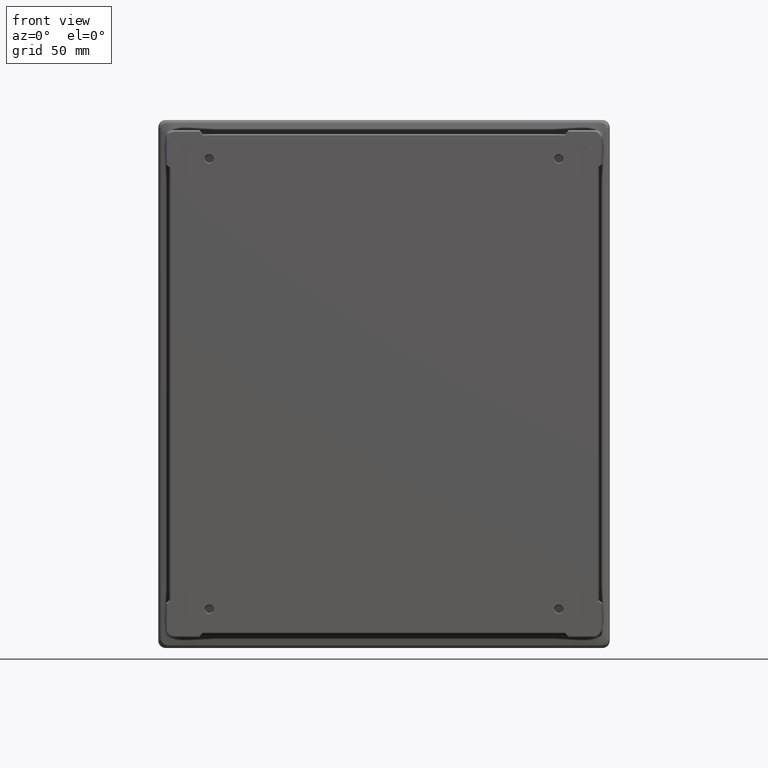
[diagram: clean part render]
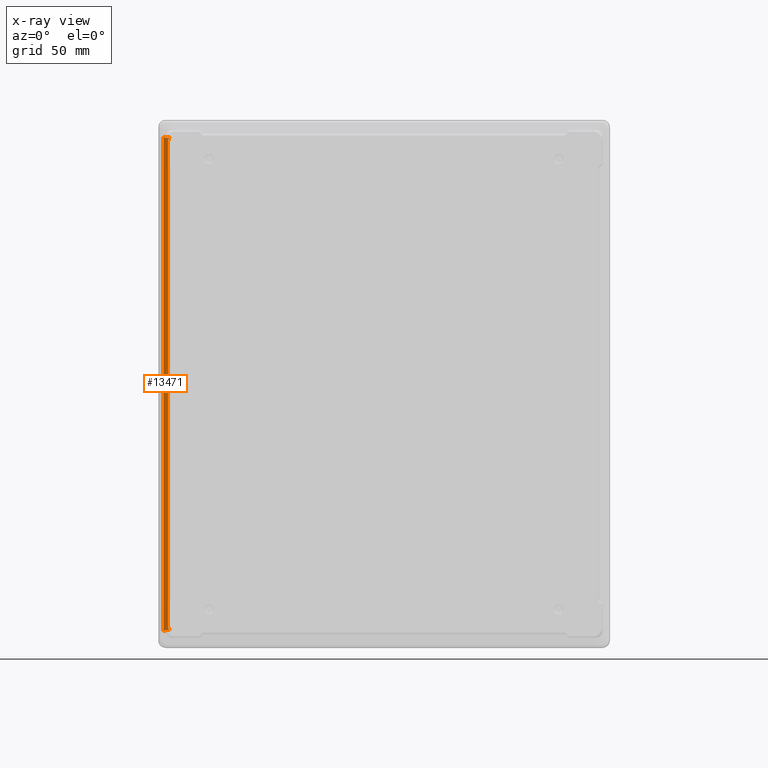
[diagram: x-ray — body ghosted, one internal face saturated and labeled with its STEP entity id]
A machine part, front view, then the same camera in x-ray: the body is ghosted and one INTERNAL B-rep face — a face not visible from any outside direction — is saturated and labeled: STEP entity #13471.
In plain terms, the highlighted planar face has unit normal (-0.2079, -0.9781, 0).
Its self-contained STEP definition (entity closure, byte-faithful):
#9 = CARTESIAN_POINT ( 'NONE',  ( -156.9217411512858900, -11.32676635418045700, 175.8495979075233600 ) ) ;
#391 = CARTESIAN_POINT ( 'NONE',  ( -160.3215915412809800, -10.60410584509062400, 179.5745773733440800 ) ) ;
#405 = CARTESIAN_POINT ( 'NONE',  ( -155.8821121425971200, -11.54774632167974400, -179.0855471241529000 ) ) ;
#747 = FACE_OUTER_BOUND ( 'NONE', #6353, .T. ) ;
#881 = ORIENTED_EDGE ( 'NONE', *, *, #6109, .T. ) ;
#947 = ORIENTED_EDGE ( 'NONE', *, *, #7126, .T. ) ;
#1583 =( BOUNDED_CURVE ( )  B_SPLINE_CURVE ( 3, ( #13172, #6758, #8056, #391 ),
 .UNSPECIFIED., .F., .F. ) 
 B_SPLINE_CURVE_WITH_KNOTS ( ( 4, 4 ),
 ( 1.307360825815972600, 2.053658399348461400 ),
 .UNSPECIFIED. ) 
 CURVE ( )  GEOMETRIC_REPRESENTATION_ITEM ( )  RATIONAL_B_SPLINE_CURVE ( ( 1.000000000000000000, 0.9541227171054242900, 0.9541227171054242900, 1.000000000000000000 ) ) 
 REPRESENTATION_ITEM ( '' )  );
#1714 = DIRECTION ( 'NONE',  ( 0.0000000000000000000, 0.0000000000000000000, 1.000000000000000000 ) ) ;
#1812 = VERTEX_POINT ( 'NONE', #10875 ) ;
#3171 = CARTESIAN_POINT ( 'NONE',  ( -160.3215915412809800, -10.60410584509062400, 183.8256848284090100 ) ) ;
#3880 = EDGE_CURVE ( 'NONE', #1812, #8954, #14073, .T. ) ;
#4498 = DIRECTION ( 'NONE',  ( 0.9781476007338061300, -0.2079116908177565700, 0.0000000000000000000 ) ) ;
#4543 = CARTESIAN_POINT ( 'NONE',  ( -162.7524562671979400, -10.08740959706477700, 191.3841030304688500 ) ) ;
#5094 = CARTESIAN_POINT ( 'NONE',  ( -155.8821121425971800, -11.54774632167973200, 179.0855471241528400 ) ) ;
#5229 = CARTESIAN_POINT ( 'NONE',  ( -157.5000000000000000, -11.20385364154251400, -178.8742562669534900 ) ) ;
#5483 = CARTESIAN_POINT ( 'NONE',  ( -156.4103615302111900, -11.43546344814420300, -178.9430773728352300 ) ) ;
#5573 = ORIENTED_EDGE ( 'NONE', *, *, #14897, .F. ) ;
#5830 = PLANE ( 'NONE',  #16324 ) ;
#6059 =( BOUNDED_CURVE ( )  B_SPLINE_CURVE ( 3, ( #15524, #14364, #5483, #7834 ),
 .UNSPECIFIED., .F., .F. ) 
 B_SPLINE_CURVE_WITH_KNOTS ( ( 4, 4 ),
 ( 4.708678783287664900, 4.975824481363623900 ),
 .UNSPECIFIED. ) 
 CURVE ( )  GEOMETRIC_REPRESENTATION_ITEM ( )  RATIONAL_B_SPLINE_CURVE ( ( 1.000000000000000000, 0.9940616018115437900, 0.9940616018115437900, 1.000000000000000000 ) ) 
 REPRESENTATION_ITEM ( '' )  );
#6109 = EDGE_CURVE ( 'NONE', #1812, #10674, #8747, .T. ) ;
#6353 = EDGE_LOOP ( 'NONE', ( #8191, #16236, #15629, #881, #10085, #5573, #947 ) ) ;
#6758 = CARTESIAN_POINT ( 'NONE',  ( -157.3886442066808200, -11.22752304609247400, 178.6792328840333000 ) ) ;
#6980 = VERTEX_POINT ( 'NONE', #11387 ) ;
#7126 = EDGE_CURVE ( 'NONE', #6980, #13782, #11195, .T. ) ;
#7132 = EDGE_CURVE ( 'NONE', #13728, #13782, #1583, .T. ) ;
#7139 =( BOUNDED_CURVE ( )  B_SPLINE_CURVE ( 3, ( #8723, #13941, #7642, #5229 ),
 .UNSPECIFIED., .F., .F. ) 
 B_SPLINE_CURVE_WITH_KNOTS ( ( 4, 4 ),
 ( 4.229526907831123100, 4.708678783287664900 ),
 .UNSPECIFIED. ) 
 CURVE ( )  GEOMETRIC_REPRESENTATION_ITEM ( )  RATIONAL_B_SPLINE_CURVE ( ( 1.000000000000000000, 0.9809591254849948600, 0.9809591254849948600, 1.000000000000000000 ) ) 
 REPRESENTATION_ITEM ( '' )  );
#7642 = CARTESIAN_POINT ( 'NONE',  ( -158.4878712705715600, -10.99387512089722400, -178.8779214556649000 ) ) ;
#7679 = CARTESIAN_POINT ( 'NONE',  ( -156.5635530414496100, -11.40290158723833300, 178.1342551100690900 ) ) ;
#7834 = CARTESIAN_POINT ( 'NONE',  ( -155.8821121425971200, -11.54774632167974400, -179.0855471241529000 ) ) ;
#7947 = CARTESIAN_POINT ( 'NONE',  ( -156.9217411512858600, -11.32676635418046700, -177.0193588117322200 ) ) ;
#8056 = CARTESIAN_POINT ( 'NONE',  ( -158.9396254795273400, -10.89785179952163000, 178.8500810151398600 ) ) ;
#8191 = ORIENTED_EDGE ( 'NONE', *, *, #7132, .F. ) ;
#8723 = CARTESIAN_POINT ( 'NONE',  ( -160.3215915412809800, -10.60410584509062400, -179.5745773733441100 ) ) ;
#8747 =( BOUNDED_CURVE ( )  B_SPLINE_CURVE ( 3, ( #14209, #7947, #10493, #405 ),
 .UNSPECIFIED., .F., .F. ) 
 B_SPLINE_CURVE_WITH_KNOTS ( ( 4, 4 ),
 ( 3.333584311725263900, 3.960757815659446700 ),
 .UNSPECIFIED. ) 
 CURVE ( )  GEOMETRIC_REPRESENTATION_ITEM ( )  RATIONAL_B_SPLINE_CURVE ( ( 1.000000000000000000, 0.9674888511922956600, 0.9674888511922956600, 1.000000000000000000 ) ) 
 REPRESENTATION_ITEM ( '' )  );
#8954 = VERTEX_POINT ( 'NONE', #16358 ) ;
#9037 = VECTOR ( 'NONE', #9237, 1000.000000000000000 ) ;
#9237 = DIRECTION ( 'NONE',  ( -1.539166142350817000E-016, 3.271598630569969400E-017, 1.000000000000000000 ) ) ;
#9241 = CARTESIAN_POINT ( 'NONE',  ( -155.8821121425971800, -11.54774632167973200, 179.0855471241528400 ) ) ;
#9714 = DIRECTION ( 'NONE',  ( -0.2079116908177565900, -0.9781476007338062400, 0.0000000000000000000 ) ) ;
#9777 = EDGE_CURVE ( 'NONE', #13006, #10674, #6059, .T. ) ;
#10085 = ORIENTED_EDGE ( 'NONE', *, *, #9777, .F. ) ;
#10391 = EDGE_CURVE ( 'NONE', #13728, #8954, #12351, .T. ) ;
#10493 = CARTESIAN_POINT ( 'NONE',  ( -156.5635530414495500, -11.40290158723835000, -178.1342551100691500 ) ) ;
#10535 = CARTESIAN_POINT ( 'NONE',  ( -156.9217411512858300, -11.32676635418046900, -184.3981870352587900 ) ) ;
#10674 = VERTEX_POINT ( 'NONE', #11899 ) ;
#10875 = CARTESIAN_POINT ( 'NONE',  ( -156.9217411512858300, -11.32676635418046900, -175.8495979075233900 ) ) ;
#11195 = LINE ( 'NONE', #3171, #13794 ) ;
#11387 = CARTESIAN_POINT ( 'NONE',  ( -160.3215915412809800, -10.60410584509062400, -179.5745773733441100 ) ) ;
#11661 = CARTESIAN_POINT ( 'NONE',  ( -160.3215915412809800, -10.60410584509062400, 179.5745773733440800 ) ) ;
#11899 = CARTESIAN_POINT ( 'NONE',  ( -155.8821121425971200, -11.54774632167974400, -179.0855471241529000 ) ) ;
#12351 =( BOUNDED_CURVE ( )  B_SPLINE_CURVE ( 3, ( #5094, #7679, #15418, #9 ),
 .UNSPECIFIED., .F., .F. ) 
 B_SPLINE_CURVE_WITH_KNOTS ( ( 4, 4 ),
 ( 2.322427491520143500, 2.949600995454322300 ),
 .UNSPECIFIED. ) 
 CURVE ( )  GEOMETRIC_REPRESENTATION_ITEM ( )  RATIONAL_B_SPLINE_CURVE ( ( 1.000000000000000000, 0.9674888511922958800, 0.9674888511922958800, 1.000000000000000000 ) ) 
 REPRESENTATION_ITEM ( '' )  );
#13006 = VERTEX_POINT ( 'NONE', #14124 ) ;
#13172 = CARTESIAN_POINT ( 'NONE',  ( -155.8821121425971800, -11.54774632167973200, 179.0855471241528400 ) ) ;
#13471 = ADVANCED_FACE ( 'NONE', ( #747 ), #5830, .F. ) ;
#13728 = VERTEX_POINT ( 'NONE', #9241 ) ;
#13782 = VERTEX_POINT ( 'NONE', #11661 ) ;
#13794 = VECTOR ( 'NONE', #1714, 1000.000000000000000 ) ;
#13941 = CARTESIAN_POINT ( 'NONE',  ( -159.4466579206221900, -10.79007872718735200, -179.1158930109847300 ) ) ;
#14073 = LINE ( 'NONE', #10535, #9037 ) ;
#14124 = CARTESIAN_POINT ( 'NONE',  ( -157.5000000000000000, -11.20385364154251400, -178.8742562669534900 ) ) ;
#14209 = CARTESIAN_POINT ( 'NONE',  ( -156.9217411512858300, -11.32676635418046900, -175.8495979075233900 ) ) ;
#14364 = CARTESIAN_POINT ( 'NONE',  ( -156.9528791684388700, -11.32014776431718600, -178.8722263454896500 ) ) ;
#14897 = EDGE_CURVE ( 'NONE', #6980, #13006, #7139, .T. ) ;
#15418 = CARTESIAN_POINT ( 'NONE',  ( -156.9217411512859700, -11.32676635418045100, 177.0193588117321900 ) ) ;
#15524 = CARTESIAN_POINT ( 'NONE',  ( -157.5000000000000000, -11.20385364154251400, -178.8742562669534900 ) ) ;
#15629 = ORIENTED_EDGE ( 'NONE', *, *, #3880, .F. ) ;
#16236 = ORIENTED_EDGE ( 'NONE', *, *, #10391, .T. ) ;
#16324 = AXIS2_PLACEMENT_3D ( 'NONE', #4543, #9714, #4498 ) ;
#16358 = CARTESIAN_POINT ( 'NONE',  ( -156.9217411512858900, -11.32676635418045700, 175.8495979075233600 ) ) ;